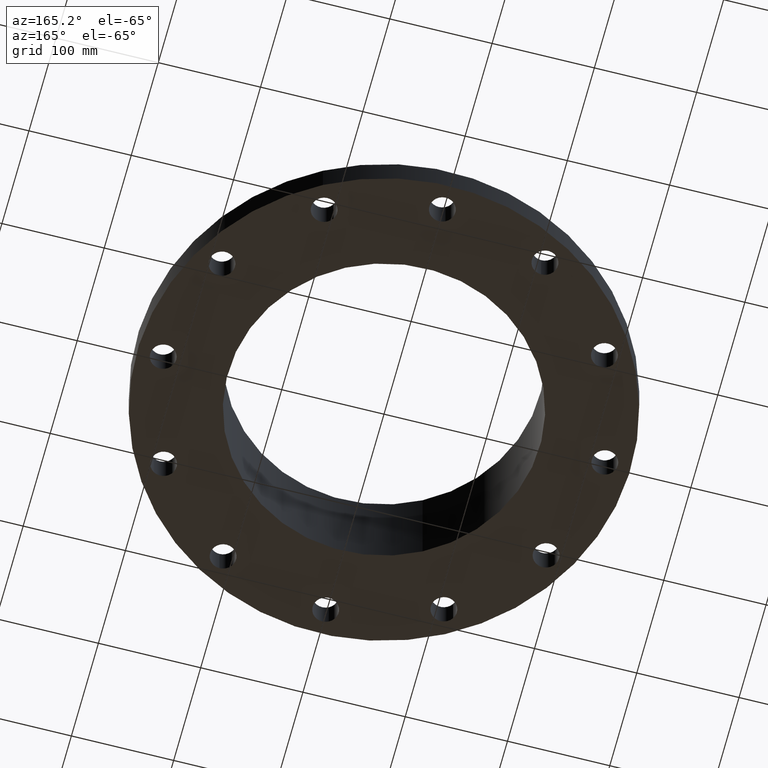
[diagram: clean part render]
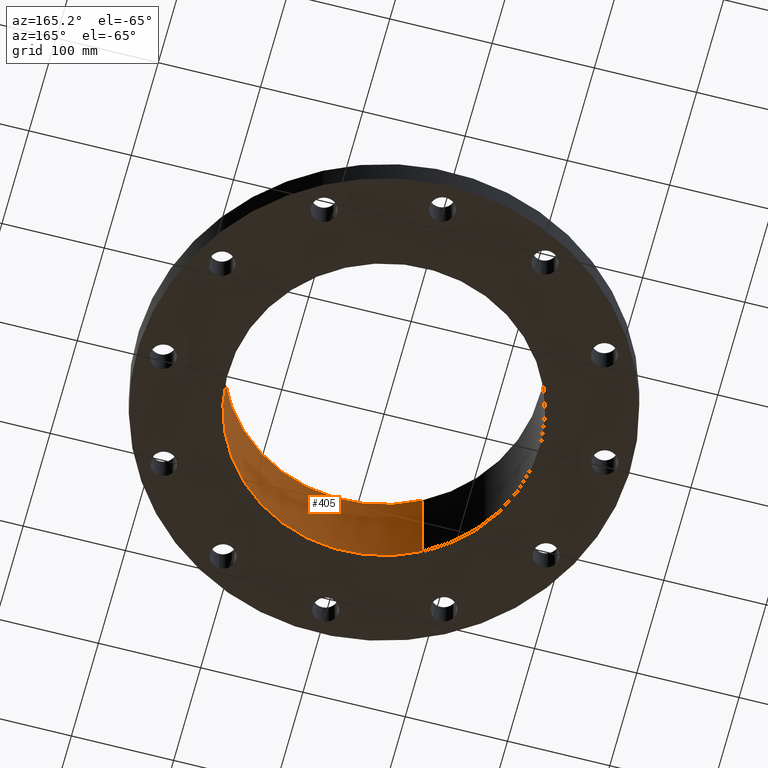
[diagram: same view with one face highlighted and labeled with its STEP entity id]
A machine part, auxiliary view. The second image highlights one B-rep face of the part: STEP entity #405.
In plain terms, the highlighted cylindrical surface (partial cylindrical patch) has radius 152.4 mm, axis along (0, 0, -1).
Its self-contained STEP definition (entity closure, byte-faithful):
#355=AXIS2_PLACEMENT_3D('Circle Axis2P3D',#353,#354,$) ;
#366=AXIS2_PLACEMENT_3D('Cylinder Axis2P3D',#363,#364,#365) ;
#396=AXIS2_PLACEMENT_3D('Circle Axis2P3D',#394,#395,$) ;
#348=CARTESIAN_POINT('Vertex',(-2.87655323164,-5.26549537136,4.50000000002)) ;
#350=CARTESIAN_POINT('Vertex',(2.87655323164,5.26549537136,4.50000000002)) ;
#353=CARTESIAN_POINT('Axis2P3D Location',(2.23792987641E-015,1.39870617276E-016,4.50000000002)) ;
#363=CARTESIAN_POINT('Axis2P3D Location',(0.,0.,2.30000000001)) ;
#368=CARTESIAN_POINT('Line Origine',(-2.87655323164,-5.26549537136,2.25000000001)) ;
#372=CARTESIAN_POINT('Vertex',(-2.87655323164,-5.26549537136,-3.27297244425E-014)) ;
#379=CARTESIAN_POINT('Vertex',(2.87655323164,5.26549537136,-3.27297244425E-014)) ;
#382=CARTESIAN_POINT('Line Origine',(2.87655323164,5.26549537136,2.25000000001)) ;
#394=CARTESIAN_POINT('Axis2P3D Location',(0.,0.,-3.3009465677E-014)) ;
#354=DIRECTION('Axis2P3D Direction',(0.,-0.,-0.0393700787402)) ;
#364=DIRECTION('Axis2P3D Direction',(0.,0.,-0.0393700787402)) ;
#365=DIRECTION('Axis2P3D XDirection',(0.0188750212049,0.0345504945626,0.)) ;
#369=DIRECTION('Vector Direction',(0.,0.,-0.0393700787402)) ;
#383=DIRECTION('Vector Direction',(0.,0.,-0.0393700787402)) ;
#395=DIRECTION('Axis2P3D Direction',(0.,0.,-0.0393700787402)) ;
#370=VECTOR('Line Direction',#369,0.0393700787402) ;
#384=VECTOR('Line Direction',#383,0.0393700787402) ;
#400=ORIENTED_EDGE('',*,*,#386,.T.) ;
#401=ORIENTED_EDGE('',*,*,#398,.T.) ;
#402=ORIENTED_EDGE('',*,*,#374,.F.) ;
#403=ORIENTED_EDGE('',*,*,#357,.F.) ;
#405=ADVANCED_FACE('PartBody',(#404),#367,.F.) ;
#356=CIRCLE('generated circle',#355,6.00000000002) ;
#397=CIRCLE('generated circle',#396,6.00000000002) ;
#367=CYLINDRICAL_SURFACE('generated cylinder',#366,6.00000000002) ;
#357=EDGE_CURVE('',#351,#349,#356,.T.) ;
#374=EDGE_CURVE('',#349,#373,#371,.T.) ;
#386=EDGE_CURVE('',#351,#380,#385,.T.) ;
#398=EDGE_CURVE('',#380,#373,#397,.T.) ;
#399=EDGE_LOOP('',(#400,#401,#402,#403)) ;
#404=FACE_OUTER_BOUND('',#399,.T.) ;
#371=LINE('Line',#368,#370) ;
#385=LINE('Line',#382,#384) ;
#349=VERTEX_POINT('',#348) ;
#351=VERTEX_POINT('',#350) ;
#373=VERTEX_POINT('',#372) ;
#380=VERTEX_POINT('',#379) ;